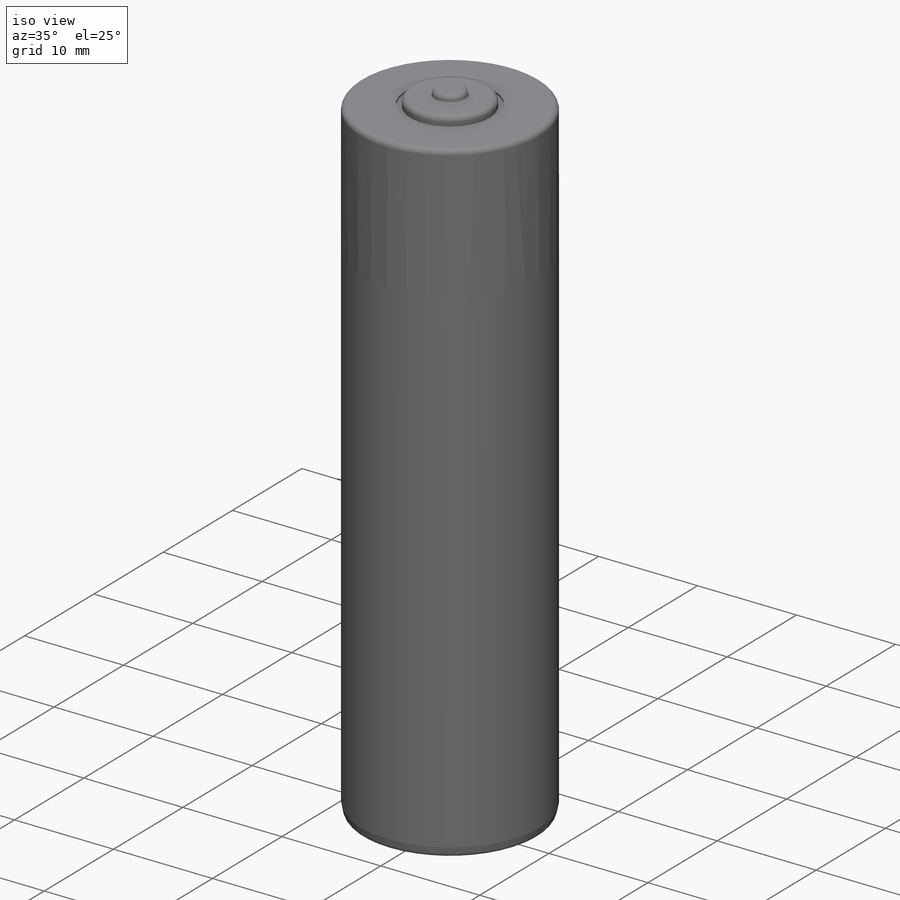
[diagram: iso view]
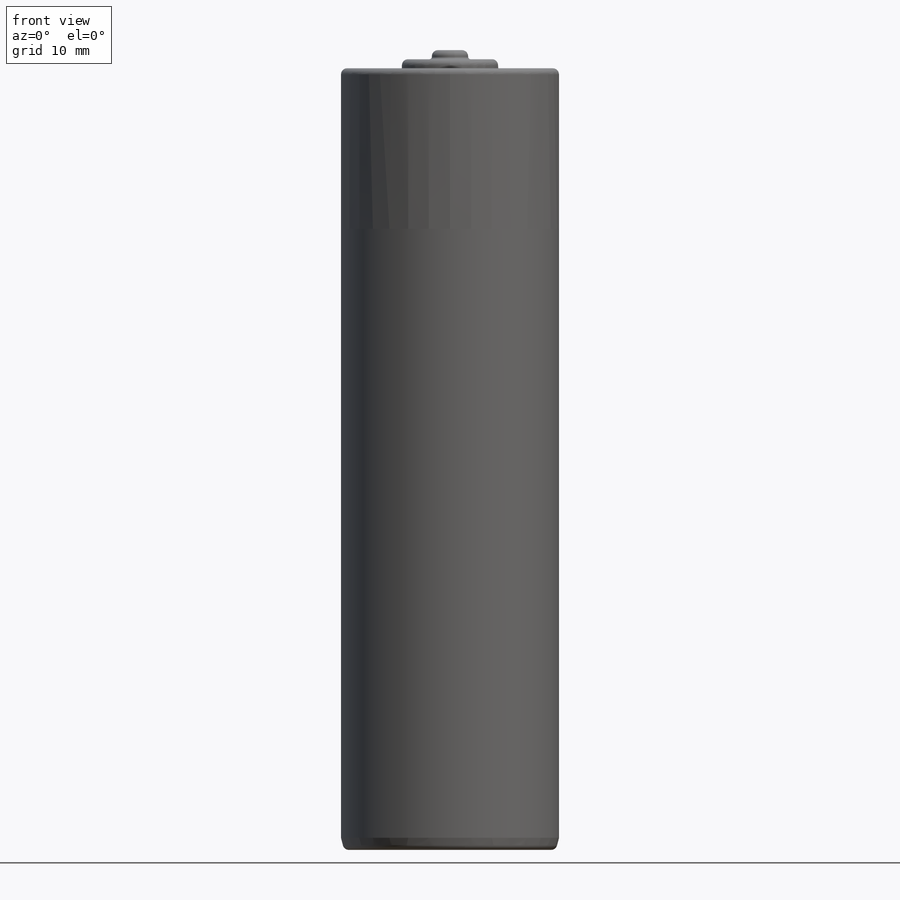
[diagram: front view]
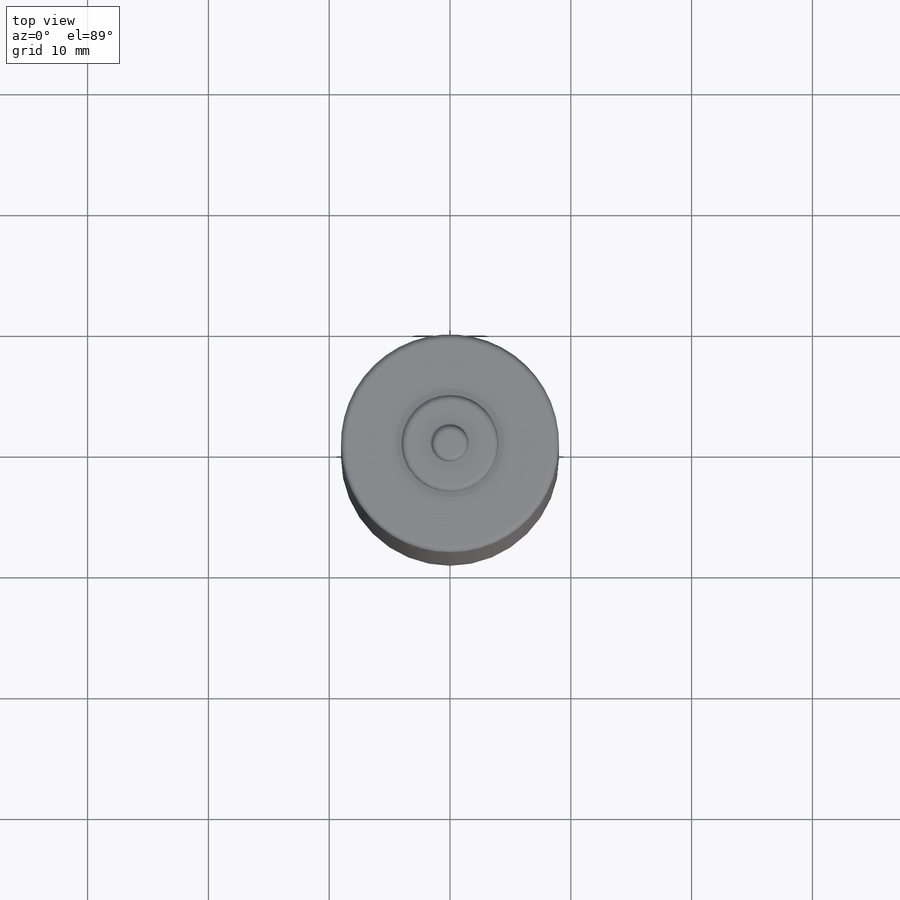
[diagram: top view]
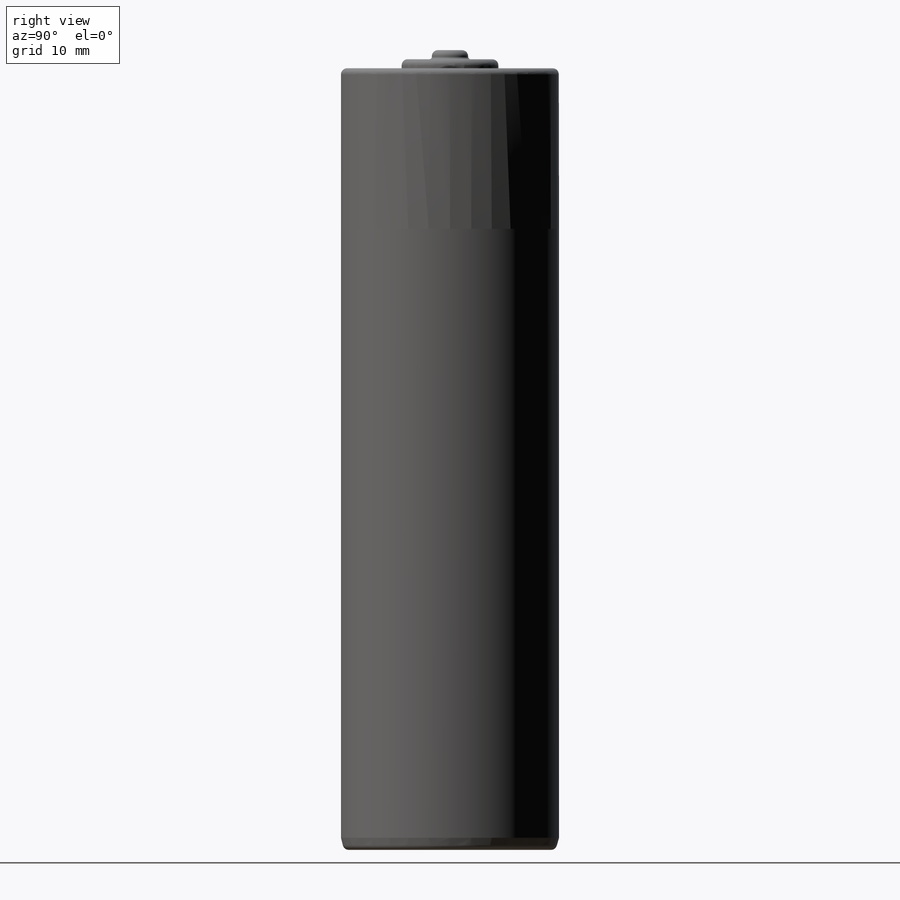
[diagram: right view]
SOLIDWORKS PART (.sldprt)
format: sldprt  version: not decoded by parser v0  size: 295,936 bytes
history: native  units: mm
features: sketch x6, extrude x4, fillet x2, material x1, cut_revolve x1, plane x1 (+17 scaffold rows collapsed)
feature tree (32):
  scaffold x17  (default folders/planes/origin — collapsed)
  material  "Material <not specified>"
  sketch  "Sketch1"  dims[D1=18.05mm]
  extrude  "Base"  Depth=64.7mm
  sketch  "Sketch7"  dims[c1.D1=9.0mm c2.D1=0.2mm c2.D5=0.5mm c2.D6=10.0mm c2.D7=5.0mm]
  sketch  "Sketch2"  dims[D1=3.0mm]
  extrude  "+ Terminal"  Depth=1.5mm
  sketch  "Sketch6"  dims[D1=0.0mm]
  extrude  "+ Step"  Depth=0.75mm
  sketch  "Sketch8"  dims[D1=1.0mm D2=0.25mm]
  cut_revolve  "- Drop Off"  Angle=360deg
  sketch  "Sketch3"  dims[D1=6.7mm]
  extrude  "- Rim"  Depth=0.5mm
  fillet  "Outer Fillet"  Radius=0.5mm
  fillet  "Inner Fillet"  Radius=0.2mm
  plane  "Copper Plane"  Offset=13.3mm
decode coverage: 13 of 13 modeling features carry decoded parameters
note: suppression state not decoded; provenance and decode notes live in map.json
